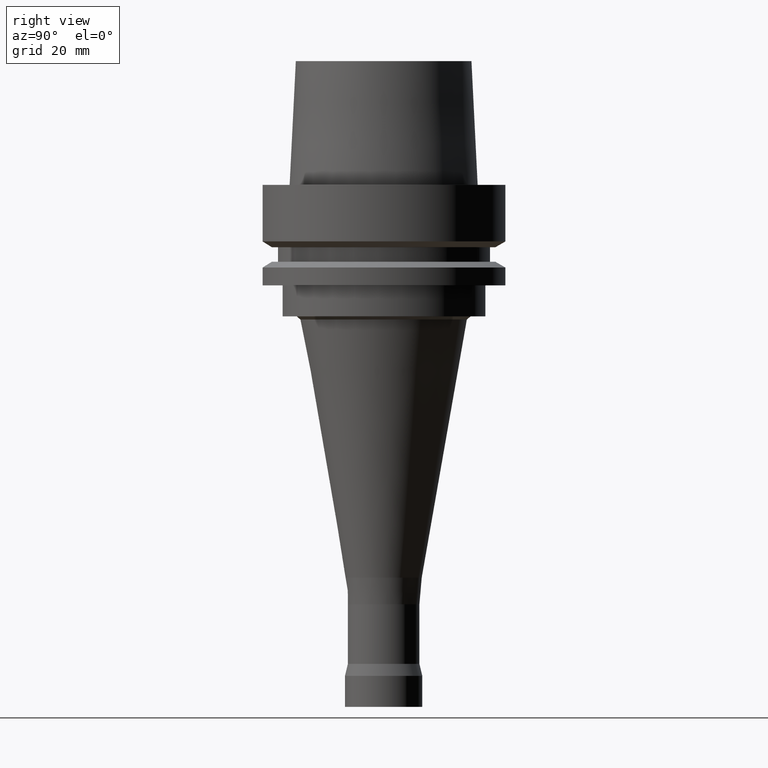
[diagram: clean part render]
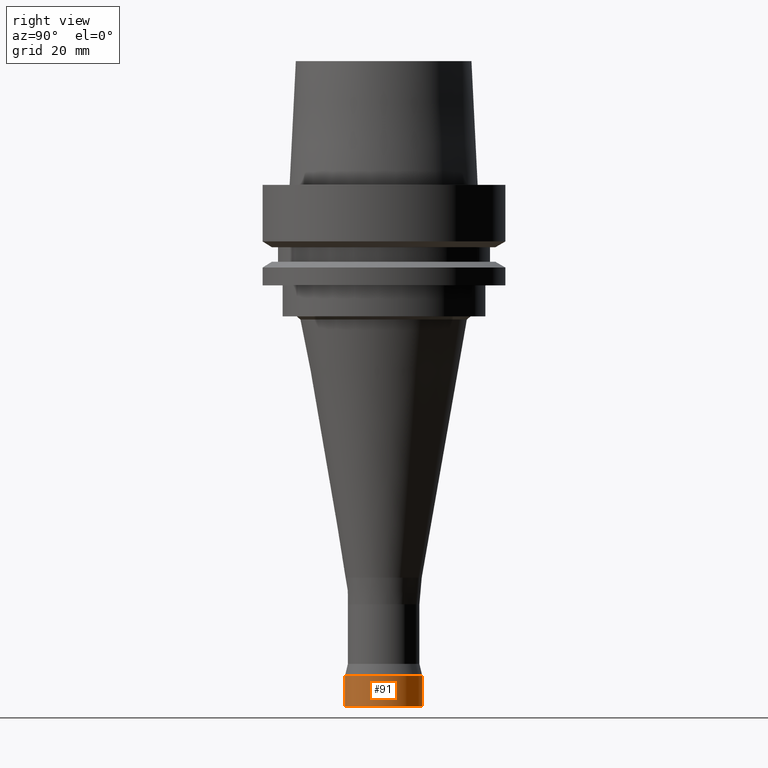
[diagram: same view with one face highlighted and labeled with its STEP entity id]
A machine part, right view. The second image highlights one B-rep face of the part: STEP entity #91.
In plain terms, the highlighted cylindrical surface (bore or boss wall) has radius 10 mm, axis along (-0, -0, 1).
Its self-contained STEP definition (entity closure, byte-faithful):
#91=ADVANCED_FACE('',(#144,#145),#146,.T.);
#144=FACE_BOUND('',#202,.T.);
#145=FACE_BOUND('',#203,.T.);
#146=CYLINDRICAL_SURFACE('',#204,10.0);
#202=EDGE_LOOP('',(#292));
#203=EDGE_LOOP('',(#293));
#204=AXIS2_PLACEMENT_3D('',#294,#295,#296);
#292=ORIENTED_EDGE('',*,*,#327,.F.);
#293=ORIENTED_EDGE('',*,*,#326,.T.);
#294=CARTESIAN_POINT('',(8.02143653441516E-015,1.60428730688303E-014,-131.0));
#295=DIRECTION('',(-6.12323399573677E-017,-1.22464679914735E-016,1.0));
#296=DIRECTION('',(-1.23259516440783E-032,1.0,1.22464679914735E-016));
#326=EDGE_CURVE('',#361,#361,#362,.T.);
#327=EDGE_CURVE('',#363,#363,#364,.T.);
#361=VERTEX_POINT('',#399);
#362=CIRCLE('',#400,10.0);
#363=VERTEX_POINT('',#401);
#364=CIRCLE('',#402,10.0);
#399=CARTESIAN_POINT('',(7.77650717458569E-015,10.0,-127.0));
#400=AXIS2_PLACEMENT_3D('',#453,#454,#455);
#401=CARTESIAN_POINT('',(8.26636589424463E-015,10.0,-135.0));
#402=AXIS2_PLACEMENT_3D('',#456,#457,#458);
#453=CARTESIAN_POINT('',(7.77650717458569E-015,1.55530143491714E-014,-127.0));
#454=DIRECTION('',(6.12323399573677E-017,1.22464679914735E-016,-1.0));
#455=DIRECTION('',(-1.23259516440783E-032,1.0,1.22464679914735E-016));
#456=CARTESIAN_POINT('',(8.26636589424463E-015,1.65327317884893E-014,-135.0));
#457=DIRECTION('',(6.12323399573677E-017,1.22464679914735E-016,-1.0));
#458=DIRECTION('',(-1.23259516440783E-032,1.0,1.22464679914735E-016));